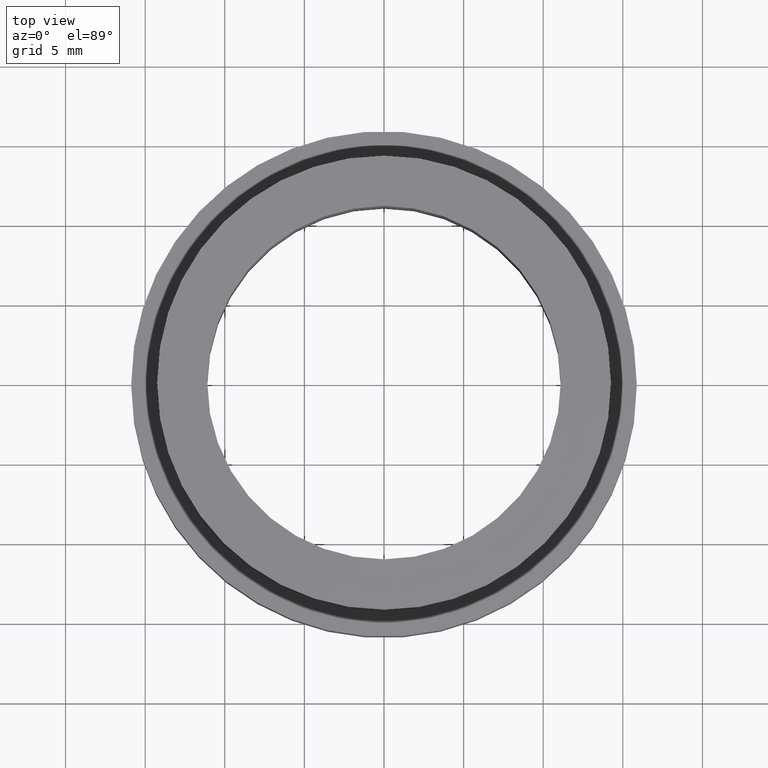
[diagram: clean part render]
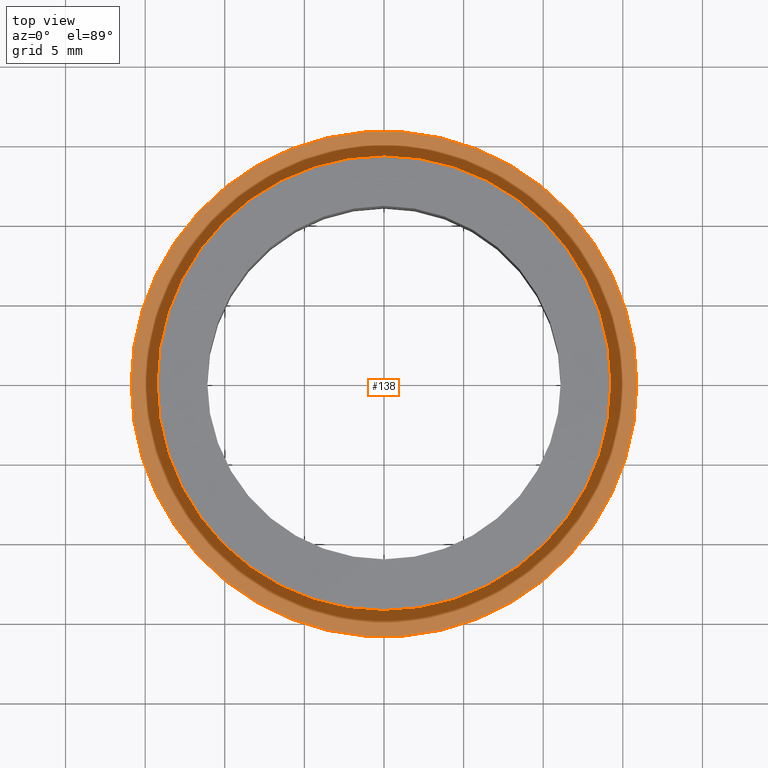
[diagram: same view with one face highlighted and labeled with its STEP entity id]
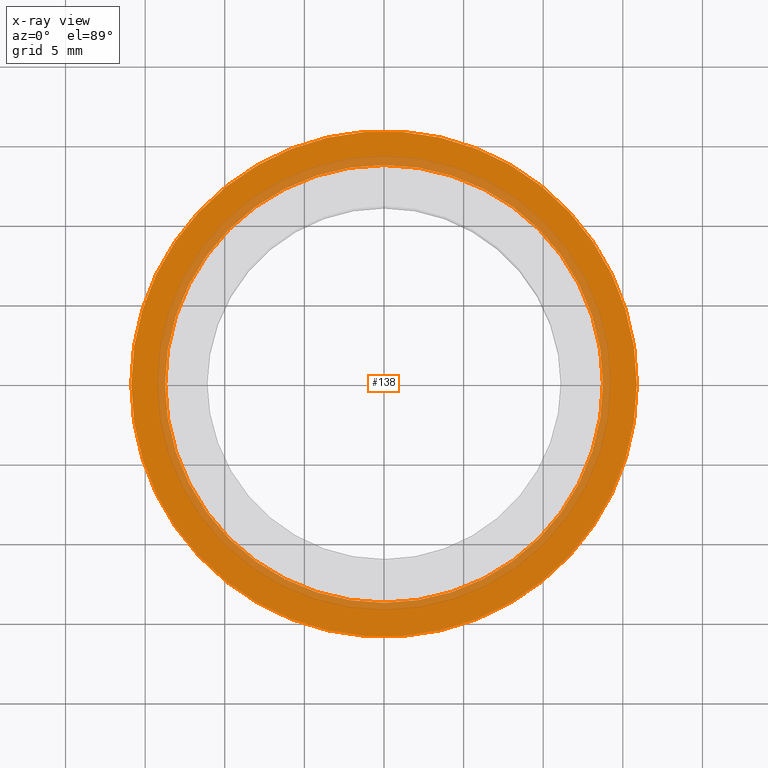
[diagram: x-ray of the same camera — body ghosted, the highlighted face saturated]
A machine part, top view. The second image highlights one B-rep face of the part: STEP entity #138.
The next image is the same camera in x-ray: the body ghosted, the highlighted face saturated — about 22% of this face is hidden behind the body in this view.
In plain terms, the highlighted planar face has unit normal (-0, 0, -1).
Its self-contained STEP definition (entity closure, byte-faithful):
#9 = CARTESIAN_POINT ( 'NONE',  ( 13.75000000000000400, 0.0000000000000000000, -5.000000000000000000 ) ) ;
#15 = AXIS2_PLACEMENT_3D ( 'NONE', #247, #76, #80 ) ;
#20 = CIRCLE ( 'NONE', #380, 15.87500000000000000 ) ;
#27 = CIRCLE ( 'NONE', #38, 13.75000000000000400 ) ;
#29 = EDGE_CURVE ( 'NONE', #187, #75, #20, .T. ) ;
#32 = DIRECTION ( 'NONE',  ( -0.0000000000000000000, -0.0000000000000000000, -1.000000000000000000 ) ) ;
#38 = AXIS2_PLACEMENT_3D ( 'NONE', #166, #99, #184 ) ;
#61 = ORIENTED_EDGE ( 'NONE', *, *, #191, .T. ) ;
#69 = ORIENTED_EDGE ( 'NONE', *, *, #292, .T. ) ;
#75 = VERTEX_POINT ( 'NONE', #307 ) ;
#76 = DIRECTION ( 'NONE',  ( -0.0000000000000000000, -0.0000000000000000000, -1.000000000000000000 ) ) ;
#80 = DIRECTION ( 'NONE',  ( -1.000000000000000000, 0.0000000000000000000, 0.0000000000000000000 ) ) ;
#83 = PLANE ( 'NONE',  #319 ) ;
#95 = VERTEX_POINT ( 'NONE', #365 ) ;
#99 = DIRECTION ( 'NONE',  ( -0.0000000000000000000, -0.0000000000000000000, -1.000000000000000000 ) ) ;
#138 = ADVANCED_FACE ( 'NONE', ( #179, #331 ), #83, .F. ) ;
#151 = ORIENTED_EDGE ( 'NONE', *, *, #29, .F. ) ;
#159 = EDGE_LOOP ( 'NONE', ( #173, #151 ) ) ;
#166 = CARTESIAN_POINT ( 'NONE',  ( 0.0000000000000000000, 0.0000000000000000000, -5.000000000000000900 ) ) ;
#173 = ORIENTED_EDGE ( 'NONE', *, *, #349, .F. ) ;
#179 = FACE_OUTER_BOUND ( 'NONE', #159, .T. ) ;
#184 = DIRECTION ( 'NONE',  ( -1.000000000000000000, 0.0000000000000000000, 0.0000000000000000000 ) ) ;
#187 = VERTEX_POINT ( 'NONE', #258 ) ;
#191 = EDGE_CURVE ( 'NONE', #95, #423, #27, .T. ) ;
#215 = EDGE_LOOP ( 'NONE', ( #61, #69 ) ) ;
#224 = DIRECTION ( 'NONE',  ( -0.0000000000000000000, 0.0000000000000000000, -1.000000000000000000 ) ) ;
#247 = CARTESIAN_POINT ( 'NONE',  ( 0.0000000000000000000, 0.0000000000000000000, -5.000000000000000900 ) ) ;
#258 = CARTESIAN_POINT ( 'NONE',  ( 15.87500000000000000, 1.944126793646423200E-015, -5.000000000000000900 ) ) ;
#281 = AXIS2_PLACEMENT_3D ( 'NONE', #282, #426, #351 ) ;
#282 = CARTESIAN_POINT ( 'NONE',  ( 0.0000000000000000000, 0.0000000000000000000, -5.000000000000000900 ) ) ;
#292 = EDGE_CURVE ( 'NONE', #423, #95, #407, .T. ) ;
#307 = CARTESIAN_POINT ( 'NONE',  ( -15.87500000000000000, 0.0000000000000000000, -5.000000000000000900 ) ) ;
#319 = AXIS2_PLACEMENT_3D ( 'NONE', #9, #224, #405 ) ;
#331 = FACE_BOUND ( 'NONE', #215, .T. ) ;
#338 = CIRCLE ( 'NONE', #15, 15.87500000000000000 ) ;
#349 = EDGE_CURVE ( 'NONE', #75, #187, #338, .T. ) ;
#351 = DIRECTION ( 'NONE',  ( -1.000000000000000000, 0.0000000000000000000, 0.0000000000000000000 ) ) ;
#365 = CARTESIAN_POINT ( 'NONE',  ( -13.75000000000000400, 0.0000000000000000000, -5.000000000000000900 ) ) ;
#380 = AXIS2_PLACEMENT_3D ( 'NONE', #410, #32, #421 ) ;
#405 = DIRECTION ( 'NONE',  ( -1.000000000000000000, 0.0000000000000000000, 0.0000000000000000000 ) ) ;
#407 = CIRCLE ( 'NONE', #281, 13.75000000000000400 ) ;
#410 = CARTESIAN_POINT ( 'NONE',  ( 0.0000000000000000000, 0.0000000000000000000, -5.000000000000000900 ) ) ;
#413 = CARTESIAN_POINT ( 'NONE',  ( 13.75000000000000400, 1.683889348827611200E-015, -5.000000000000000900 ) ) ;
#421 = DIRECTION ( 'NONE',  ( -1.000000000000000000, 0.0000000000000000000, 0.0000000000000000000 ) ) ;
#423 = VERTEX_POINT ( 'NONE', #413 ) ;
#426 = DIRECTION ( 'NONE',  ( -0.0000000000000000000, -0.0000000000000000000, -1.000000000000000000 ) ) ;